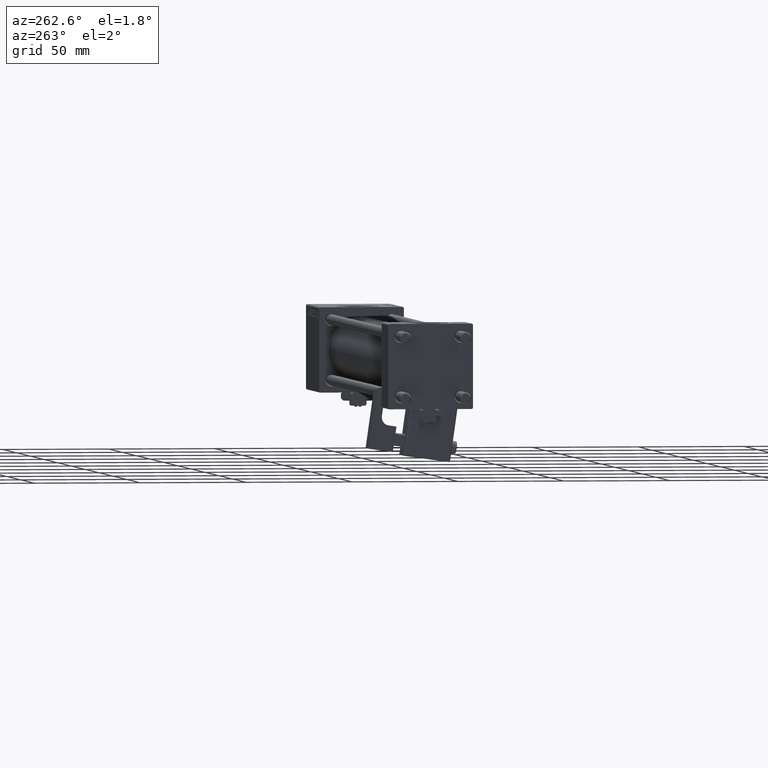
[diagram: clean part render]
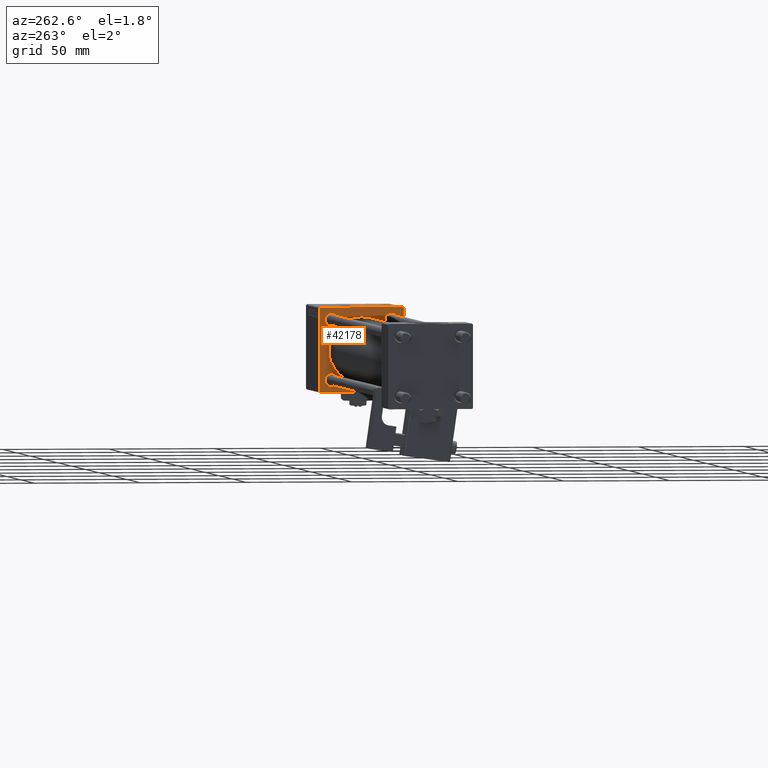
[diagram: same view with one face highlighted and labeled with its STEP entity id]
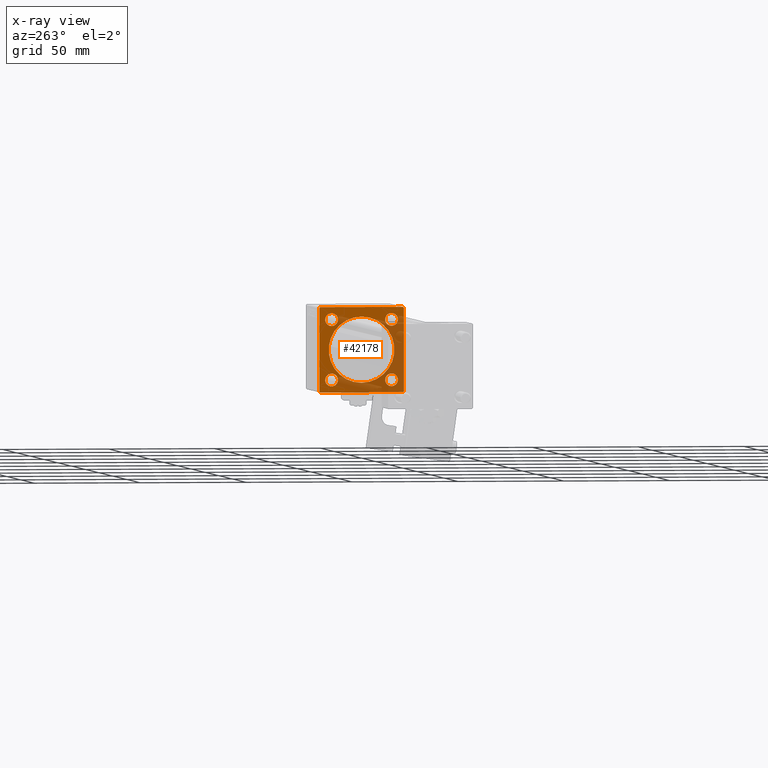
[diagram: x-ray of the same camera — body ghosted, the highlighted face saturated]
A machine part, auxiliary view. The second image highlights one B-rep face of the part: STEP entity #42178.
The next image is the same camera in x-ray: the body ghosted, the highlighted face saturated — about 47% of this face is hidden behind the body in this view.
In plain terms, the highlighted planar face has unit normal (-1, 0, 0).
Its self-contained STEP definition (entity closure, byte-faithful):
#238 = CARTESIAN_POINT ( 'NONE',  ( 251.0000000000000000, 14.15000000000000036, 11.14999999999994351 ) ) ;
#458 = EDGE_LOOP ( 'NONE', ( #38682, #9758, #15630, #46795, #22152, #14832, #50085, #16598 ) ) ;
#653 = DIRECTION ( 'NONE',  ( 0.000000000000000000, 0.000000000000000000, 1.000000000000000000 ) ) ;
#711 = AXIS2_PLACEMENT_3D ( 'NONE', #15960, #11852, #12662 ) ;
#748 = AXIS2_PLACEMENT_3D ( 'NONE', #51865, #22639, #39314 ) ;
#963 = VERTEX_POINT ( 'NONE', #2803 ) ;
#996 = AXIS2_PLACEMENT_3D ( 'NONE', #20308, #21119, #36987 ) ;
#1299 = LINE ( 'NONE', #18527, #35065 ) ;
#1843 = CARTESIAN_POINT ( 'NONE',  ( 251.0000000000000000, 14.15000000000000036, -17.15000000000006253 ) ) ;
#2239 = EDGE_CURVE ( 'NONE', #33705, #32045, #28613, .T. ) ;
#2358 = EDGE_CURVE ( 'NONE', #8914, #28072, #8565, .T. ) ;
#2803 = CARTESIAN_POINT ( 'NONE',  ( 251.0000000000000000, 14.15000000000000036, -11.14999999999994174 ) ) ;
#3065 = EDGE_CURVE ( 'NONE', #35433, #11594, #26951, .T. ) ;
#4209 = VECTOR ( 'NONE', #13473, 1000.000000000000000 ) ;
#4510 = ORIENTED_EDGE ( 'NONE', *, *, #8882, .T. ) ;
#4731 = EDGE_LOOP ( 'NONE', ( #4510, #51182 ) ) ;
#4803 = AXIS2_PLACEMENT_3D ( 'NONE', #23966, #49890, #16028 ) ;
#5060 = CIRCLE ( 'NONE', #24144, 3.000000000000000888 ) ;
#6449 = ORIENTED_EDGE ( 'NONE', *, *, #22615, .T. ) ;
#6786 = EDGE_CURVE ( 'NONE', #32045, #33705, #10367, .T. ) ;
#6954 = AXIS2_PLACEMENT_3D ( 'NONE', #44636, #41058, #12087 ) ;
#7441 = VERTEX_POINT ( 'NONE', #48808 ) ;
#7725 = AXIS2_PLACEMENT_3D ( 'NONE', #9705, #35383, #47126 ) ;
#7896 = DIRECTION ( 'NONE',  ( 0.000000000000000000, -0.7071067811865474617, 0.7071067811865474617 ) ) ;
#8565 = LINE ( 'NONE', #9658, #4209 ) ;
#8623 = CARTESIAN_POINT ( 'NONE',  ( 251.0000000000000000, -19.49999999999997513, 19.99999999999999645 ) ) ;
#8722 = VERTEX_POINT ( 'NONE', #30459 ) ;
#8882 = EDGE_CURVE ( 'NONE', #11594, #35433, #29672, .T. ) ;
#8914 = VERTEX_POINT ( 'NONE', #16194 ) ;
#9658 = CARTESIAN_POINT ( 'NONE',  ( 251.0000000000000000, -20.00000000000000355, 19.99999999999999645 ) ) ;
#9705 = CARTESIAN_POINT ( 'NONE',  ( 251.0000000000000000, -14.15000000000000036, -14.15000000000000036 ) ) ;
#9758 = ORIENTED_EDGE ( 'NONE', *, *, #46105, .T. ) ;
#10337 = CARTESIAN_POINT ( 'NONE',  ( 251.0000000000000000, -19.50000000000002487, -20.00000000000000000 ) ) ;
#10367 = CIRCLE ( 'NONE', #7725, 3.000000000000059952 ) ;
#11010 = VERTEX_POINT ( 'NONE', #10337 ) ;
#11570 = CARTESIAN_POINT ( 'NONE',  ( 251.0000000000000000, 19.99999999999999645, 19.50000000000002842 ) ) ;
#11594 = VERTEX_POINT ( 'NONE', #11994 ) ;
#11852 = DIRECTION ( 'NONE',  ( 1.000000000000000000, 0.000000000000000000, 0.000000000000000000 ) ) ;
#11994 = CARTESIAN_POINT ( 'NONE',  ( 251.0000000000000000, 14.15000000000000036, 17.15000000000006253 ) ) ;
#12087 = DIRECTION ( 'NONE',  ( 0.000000000000000000, 0.000000000000000000, 1.000000000000000000 ) ) ;
#12541 = VERTEX_POINT ( 'NONE', #26824 ) ;
#12653 = PLANE ( 'NONE',  #996 ) ;
#12662 = DIRECTION ( 'NONE',  ( 0.000000000000000000, 0.000000000000000000, 1.000000000000000000 ) ) ;
#12908 = DIRECTION ( 'NONE',  ( 1.000000000000000000, 0.000000000000000000, 0.000000000000000000 ) ) ;
#13175 = CARTESIAN_POINT ( 'NONE',  ( 251.0000000000000000, 0.000000000000000000, 0.000000000000000000 ) ) ;
#13473 = DIRECTION ( 'NONE',  ( 0.000000000000000000, 8.673617379884036705E-17, -1.000000000000000000 ) ) ;
#13550 = VERTEX_POINT ( 'NONE', #22184 ) ;
#13736 = DIRECTION ( 'NONE',  ( 0.000000000000000000, 0.000000000000000000, 1.000000000000000000 ) ) ;
#14168 = ORIENTED_EDGE ( 'NONE', *, *, #2239, .T. ) ;
#14764 = ORIENTED_EDGE ( 'NONE', *, *, #6786, .T. ) ;
#14832 = ORIENTED_EDGE ( 'NONE', *, *, #41967, .T. ) ;
#15181 = CIRCLE ( 'NONE', #21295, 15.50000000000000000 ) ;
#15630 = ORIENTED_EDGE ( 'NONE', *, *, #2358, .F. ) ;
#15946 = CARTESIAN_POINT ( 'NONE',  ( 251.0000000000000000, -19.74999999999998579, 19.74999999999998579 ) ) ;
#15960 = CARTESIAN_POINT ( 'NONE',  ( 251.0000000000000000, -14.15000000000000036, -14.15000000000000036 ) ) ;
#16028 = DIRECTION ( 'NONE',  ( 0.000000000000000000, 0.000000000000000000, -1.000000000000000000 ) ) ;
#16194 = CARTESIAN_POINT ( 'NONE',  ( 251.0000000000000000, -20.00000000000000355, 19.49999999999996803 ) ) ;
#16213 = FACE_BOUND ( 'NONE', #4731, .T. ) ;
#16526 = CARTESIAN_POINT ( 'NONE',  ( 251.0000000000000000, -14.15000000000000036, 14.15000000000000036 ) ) ;
#16563 = EDGE_LOOP ( 'NONE', ( #29980, #45434 ) ) ;
#16598 = ORIENTED_EDGE ( 'NONE', *, *, #42588, .T. ) ;
#16761 = FACE_BOUND ( 'NONE', #41820, .T. ) ;
#17105 = LINE ( 'NONE', #28591, #48125 ) ;
#17244 = CARTESIAN_POINT ( 'NONE',  ( 251.0000000000000000, 19.99999999999999645, -19.49999999999997158 ) ) ;
#18527 = CARTESIAN_POINT ( 'NONE',  ( 251.0000000000000000, 19.74999999999997868, -19.74999999999997868 ) ) ;
#18780 = EDGE_CURVE ( 'NONE', #30498, #45034, #40213, .T. ) ;
#18880 = CARTESIAN_POINT ( 'NONE',  ( 251.0000000000000000, 14.15000000000000036, -14.15000000000000036 ) ) ;
#19434 = CARTESIAN_POINT ( 'NONE',  ( 251.0000000000000000, 19.99999999999999645, 20.00000000000000000 ) ) ;
#19775 = LINE ( 'NONE', #15946, #41742 ) ;
#19836 = EDGE_CURVE ( 'NONE', #50724, #963, #37807, .T. ) ;
#20308 = CARTESIAN_POINT ( 'NONE',  ( 251.0000000000000000, 0.000000000000000000, 0.000000000000000000 ) ) ;
#20498 = DIRECTION ( 'NONE',  ( 1.000000000000000000, 0.000000000000000000, 0.000000000000000000 ) ) ;
#21119 = DIRECTION ( 'NONE',  ( -1.000000000000000000, 0.000000000000000000, -0.000000000000000000 ) ) ;
#21295 = AXIS2_PLACEMENT_3D ( 'NONE', #13175, #12908, #33673 ) ;
#21353 = VERTEX_POINT ( 'NONE', #52132 ) ;
#21427 = LINE ( 'NONE', #42216, #26886 ) ;
#22086 = AXIS2_PLACEMENT_3D ( 'NONE', #38609, #26589, #13736 ) ;
#22152 = ORIENTED_EDGE ( 'NONE', *, *, #29985, .F. ) ;
#22184 = CARTESIAN_POINT ( 'NONE',  ( 251.0000000000000000, 0.000000000000000000, 15.50000000000000000 ) ) ;
#22615 = EDGE_CURVE ( 'NONE', #13550, #29349, #15181, .T. ) ;
#22639 = DIRECTION ( 'NONE',  ( 1.000000000000000000, 0.000000000000000000, 0.000000000000000000 ) ) ;
#23827 = VECTOR ( 'NONE', #7896, 1000.000000000000114 ) ;
#23966 = CARTESIAN_POINT ( 'NONE',  ( 251.0000000000000000, 0.000000000000000000, 0.000000000000000000 ) ) ;
#24144 = AXIS2_PLACEMENT_3D ( 'NONE', #28187, #20498, #53827 ) ;
#24856 = CARTESIAN_POINT ( 'NONE',  ( 251.0000000000000000, 1.898202538678397163E-15, -15.50000000000000000 ) ) ;
#24951 = AXIS2_PLACEMENT_3D ( 'NONE', #16526, #28824, #653 ) ;
#25776 = CARTESIAN_POINT ( 'NONE',  ( 251.0000000000000000, -14.15000000000000036, -11.14999999999994174 ) ) ;
#26589 = DIRECTION ( 'NONE',  ( 1.000000000000000000, 0.000000000000000000, 0.000000000000000000 ) ) ;
#26824 = CARTESIAN_POINT ( 'NONE',  ( 251.0000000000000000, -14.15000000000000036, 11.14999999999999858 ) ) ;
#26886 = VECTOR ( 'NONE', #49851, 1000.000000000000000 ) ;
#26951 = CIRCLE ( 'NONE', #748, 3.000000000000059952 ) ;
#27028 = EDGE_CURVE ( 'NONE', #12541, #21353, #5060, .T. ) ;
#28072 = VERTEX_POINT ( 'NONE', #30701 ) ;
#28187 = CARTESIAN_POINT ( 'NONE',  ( 251.0000000000000000, -14.15000000000000036, 14.15000000000000036 ) ) ;
#28521 = DIRECTION ( 'NONE',  ( 0.000000000000000000, -1.000000000000000000, 0.000000000000000000 ) ) ;
#28591 = CARTESIAN_POINT ( 'NONE',  ( 251.0000000000000000, 19.74999999999945643, 19.75000000000055067 ) ) ;
#28613 = CIRCLE ( 'NONE', #711, 3.000000000000059952 ) ;
#28784 = CARTESIAN_POINT ( 'NONE',  ( 251.0000000000000000, 19.99999999999999645, -20.00000000000000000 ) ) ;
#28824 = DIRECTION ( 'NONE',  ( 1.000000000000000000, 0.000000000000000000, 0.000000000000000000 ) ) ;
#29349 = VERTEX_POINT ( 'NONE', #24856 ) ;
#29672 = CIRCLE ( 'NONE', #6954, 3.000000000000059952 ) ;
#29980 = ORIENTED_EDGE ( 'NONE', *, *, #52089, .T. ) ;
#29985 = EDGE_CURVE ( 'NONE', #7441, #35595, #21427, .T. ) ;
#30277 = DIRECTION ( 'NONE',  ( -0.000000000000000000, -0.7071067811865474617, -0.7071067811865474617 ) ) ;
#30459 = CARTESIAN_POINT ( 'NONE',  ( 251.0000000000000000, 19.49999999999996803, -20.00000000000000000 ) ) ;
#30498 = VERTEX_POINT ( 'NONE', #11570 ) ;
#30701 = CARTESIAN_POINT ( 'NONE',  ( 251.0000000000000000, -20.00000000000000000, -19.50000000000002487 ) ) ;
#31038 = EDGE_LOOP ( 'NONE', ( #37548, #52936 ) ) ;
#31276 = EDGE_CURVE ( 'NONE', #8914, #35595, #19775, .T. ) ;
#32045 = VERTEX_POINT ( 'NONE', #25776 ) ;
#32324 = AXIS2_PLACEMENT_3D ( 'NONE', #18880, #35547, #35815 ) ;
#32468 = VECTOR ( 'NONE', #28521, 1000.000000000000000 ) ;
#33211 = CIRCLE ( 'NONE', #32324, 3.000000000000059952 ) ;
#33415 = FACE_BOUND ( 'NONE', #50913, .T. ) ;
#33673 = DIRECTION ( 'NONE',  ( 0.000000000000000000, 0.000000000000000000, -1.000000000000000000 ) ) ;
#33691 = FACE_BOUND ( 'NONE', #31038, .T. ) ;
#33705 = VERTEX_POINT ( 'NONE', #44197 ) ;
#35065 = VECTOR ( 'NONE', #30277, 1000.000000000000114 ) ;
#35383 = DIRECTION ( 'NONE',  ( 1.000000000000000000, 0.000000000000000000, 0.000000000000000000 ) ) ;
#35433 = VERTEX_POINT ( 'NONE', #238 ) ;
#35547 = DIRECTION ( 'NONE',  ( 1.000000000000000000, 0.000000000000000000, 0.000000000000000000 ) ) ;
#35595 = VERTEX_POINT ( 'NONE', #8623 ) ;
#35815 = DIRECTION ( 'NONE',  ( 0.000000000000000000, 0.000000000000000000, 1.000000000000000000 ) ) ;
#36019 = VECTOR ( 'NONE', #52763, 1000.000000000000000 ) ;
#36056 = EDGE_CURVE ( 'NONE', #963, #50724, #33211, .T. ) ;
#36987 = DIRECTION ( 'NONE',  ( -0.000000000000000000, 0.000000000000000000, 1.000000000000000000 ) ) ;
#37157 = CIRCLE ( 'NONE', #24951, 3.000000000000000888 ) ;
#37548 = ORIENTED_EDGE ( 'NONE', *, *, #36056, .T. ) ;
#37807 = CIRCLE ( 'NONE', #22086, 3.000000000000059952 ) ;
#38609 = CARTESIAN_POINT ( 'NONE',  ( 251.0000000000000000, 14.15000000000000036, -14.15000000000000036 ) ) ;
#38682 = ORIENTED_EDGE ( 'NONE', *, *, #44211, .T. ) ;
#39314 = DIRECTION ( 'NONE',  ( 0.000000000000000000, 0.000000000000000000, 1.000000000000000000 ) ) ;
#39746 = CIRCLE ( 'NONE', #4803, 15.50000000000000000 ) ;
#40213 = LINE ( 'NONE', #19434, #36019 ) ;
#41058 = DIRECTION ( 'NONE',  ( 1.000000000000000000, 0.000000000000000000, 0.000000000000000000 ) ) ;
#41355 = FACE_BOUND ( 'NONE', #16563, .T. ) ;
#41742 = VECTOR ( 'NONE', #52839, 1000.000000000000114 ) ;
#41820 = EDGE_LOOP ( 'NONE', ( #14764, #14168 ) ) ;
#41967 = EDGE_CURVE ( 'NONE', #7441, #30498, #17105, .T. ) ;
#41973 = DIRECTION ( 'NONE',  ( 0.000000000000000000, 0.7071067811865671127, -0.7071067811865279218 ) ) ;
#42178 = ADVANCED_FACE ( 'NONE', ( #41355, #16213, #33691, #16761, #33415, #50359 ), #12653, .T. ) ;
#42216 = CARTESIAN_POINT ( 'NONE',  ( 251.0000000000000000, 19.99999999999999645, 20.00000000000000000 ) ) ;
#42588 = EDGE_CURVE ( 'NONE', #45034, #8722, #1299, .T. ) ;
#44197 = CARTESIAN_POINT ( 'NONE',  ( 251.0000000000000000, -14.15000000000000036, -17.15000000000006253 ) ) ;
#44211 = EDGE_CURVE ( 'NONE', #8722, #11010, #50626, .T. ) ;
#44636 = CARTESIAN_POINT ( 'NONE',  ( 251.0000000000000000, 14.15000000000000036, 14.15000000000000036 ) ) ;
#45034 = VERTEX_POINT ( 'NONE', #17244 ) ;
#45434 = ORIENTED_EDGE ( 'NONE', *, *, #27028, .T. ) ;
#45878 = LINE ( 'NONE', #50251, #23827 ) ;
#46105 = EDGE_CURVE ( 'NONE', #11010, #28072, #45878, .T. ) ;
#46795 = ORIENTED_EDGE ( 'NONE', *, *, #31276, .T. ) ;
#47126 = DIRECTION ( 'NONE',  ( 0.000000000000000000, 0.000000000000000000, 1.000000000000000000 ) ) ;
#48125 = VECTOR ( 'NONE', #41973, 1000.000000000000000 ) ;
#48808 = CARTESIAN_POINT ( 'NONE',  ( 251.0000000000000000, 19.49999999999999645, 20.00000000000000000 ) ) ;
#49851 = DIRECTION ( 'NONE',  ( 0.000000000000000000, -1.000000000000000000, -8.673617379884035472E-17 ) ) ;
#49890 = DIRECTION ( 'NONE',  ( 1.000000000000000000, 0.000000000000000000, 0.000000000000000000 ) ) ;
#50085 = ORIENTED_EDGE ( 'NONE', *, *, #18780, .T. ) ;
#50251 = CARTESIAN_POINT ( 'NONE',  ( 251.0000000000000000, -19.75000000000001066, -19.75000000000001066 ) ) ;
#50359 = FACE_OUTER_BOUND ( 'NONE', #458, .T. ) ;
#50626 = LINE ( 'NONE', #28784, #32468 ) ;
#50724 = VERTEX_POINT ( 'NONE', #1843 ) ;
#50796 = EDGE_CURVE ( 'NONE', #29349, #13550, #39746, .T. ) ;
#50913 = EDGE_LOOP ( 'NONE', ( #6449, #53713 ) ) ;
#51182 = ORIENTED_EDGE ( 'NONE', *, *, #3065, .T. ) ;
#51865 = CARTESIAN_POINT ( 'NONE',  ( 251.0000000000000000, 14.15000000000000036, 14.15000000000000036 ) ) ;
#52089 = EDGE_CURVE ( 'NONE', #21353, #12541, #37157, .T. ) ;
#52132 = CARTESIAN_POINT ( 'NONE',  ( 251.0000000000000000, -14.15000000000000036, 17.15000000000000568 ) ) ;
#52763 = DIRECTION ( 'NONE',  ( 0.000000000000000000, 0.000000000000000000, -1.000000000000000000 ) ) ;
#52839 = DIRECTION ( 'NONE',  ( -0.000000000000000000, 0.7071067811865474617, 0.7071067811865474617 ) ) ;
#52936 = ORIENTED_EDGE ( 'NONE', *, *, #19836, .T. ) ;
#53713 = ORIENTED_EDGE ( 'NONE', *, *, #50796, .T. ) ;
#53827 = DIRECTION ( 'NONE',  ( 0.000000000000000000, 0.000000000000000000, 1.000000000000000000 ) ) ;